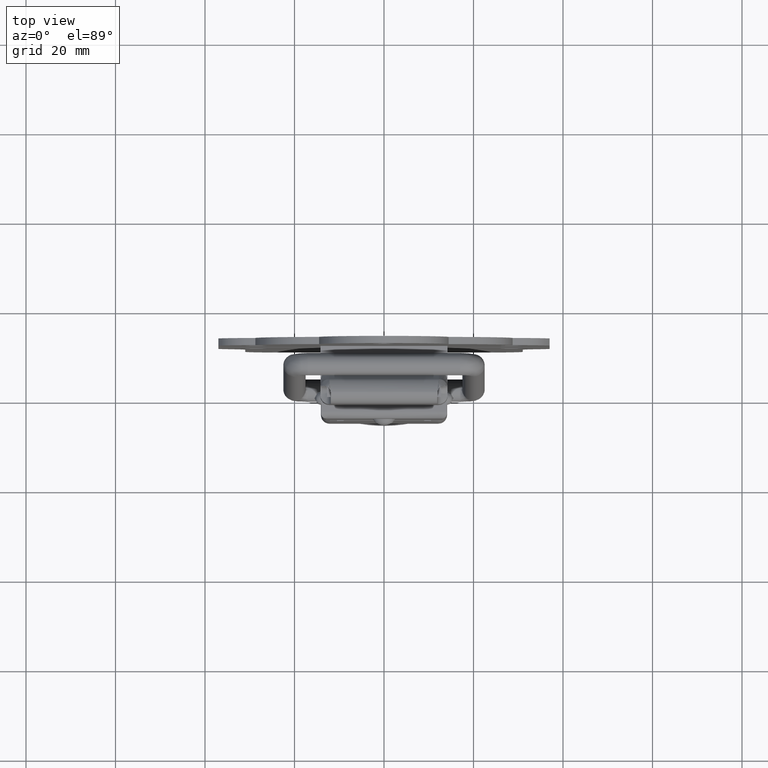
[diagram: clean part render]
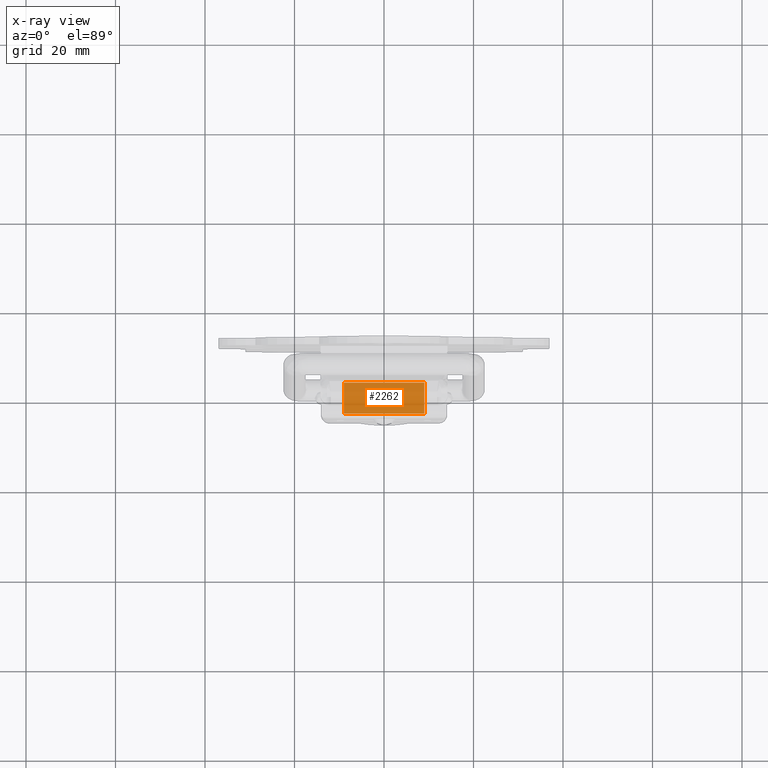
[diagram: x-ray — body ghosted, one internal face saturated and labeled with its STEP entity id]
A machine part, top view, then the same camera in x-ray: the body is ghosted and one INTERNAL B-rep face — a face not visible from any outside direction — is saturated and labeled: STEP entity #2262.
In plain terms, the highlighted face is a freeform B-spline surface patch.
Its self-contained STEP definition (entity closure, byte-faithful):
#2066=CARTESIAN_POINT('',(-8.999699999999999,3.400000000000000,4.520419885690370));
#2067=VERTEX_POINT('',#2066);
#2073=CARTESIAN_POINT('',(-8.999699999999999,-3.500000000000000,0.750000000000000));
#2074=VERTEX_POINT('',#2073);
#2075=CARTESIAN_POINT('',(-8.999699999999999,3.400000000000003,4.520419885690381));
#2076=CARTESIAN_POINT('',(-8.999699999999999,-0.728219171732910,3.876374700838773));
#2077=CARTESIAN_POINT('',(-8.999699999999999,-3.500000000000011,0.750000000000011));
#2085=(BOUNDED_CURVE()B_SPLINE_CURVE(2,(#2075,#2076,#2077),.UNSPECIFIED.,.F.,.U.)CURVE()GEOMETRIC_REPRESENTATION_ITEM()QUASI_UNIFORM_CURVE()RATIONAL_B_SPLINE_CURVE((1.0,0.940959991189904,1.0))REPRESENTATION_ITEM(''));
#2086=EDGE_CURVE('',#2067,#2074,#2085,.T.);
#2148=CARTESIAN_POINT('',(8.999699999999999,-3.500000000000000,0.750000000000000));
#2149=VERTEX_POINT('',#2148);
#2155=CARTESIAN_POINT('',(8.999699999999999,3.400000000000000,4.520419885690370));
#2156=VERTEX_POINT('',#2155);
#2157=CARTESIAN_POINT('',(8.999699999999999,3.400000000000003,4.520419885690381));
#2158=CARTESIAN_POINT('',(8.999699999999999,-0.728219171732910,3.876374700838773));
#2159=CARTESIAN_POINT('',(8.999699999999999,-3.500000000000011,0.750000000000011));
#2167=(BOUNDED_CURVE()B_SPLINE_CURVE(2,(#2157,#2158,#2159),.UNSPECIFIED.,.F.,.U.)CURVE()GEOMETRIC_REPRESENTATION_ITEM()QUASI_UNIFORM_CURVE()RATIONAL_B_SPLINE_CURVE((1.0,0.940959991189904,1.0))REPRESENTATION_ITEM(''));
#2168=EDGE_CURVE('',#2156,#2149,#2167,.T.);
#2230=CARTESIAN_POINT('',(8.999699999999999,3.400000000000000,4.520419885690370));
#2231=CARTESIAN_POINT('',(-8.999699999999999,3.400000000000000,4.520419885690370));
#2232=QUASI_UNIFORM_CURVE('',1,(#2230,#2231),.UNSPECIFIED.,.F.,.U.);
#2233=EDGE_CURVE('',#2156,#2067,#2232,.T.);
#2238=CARTESIAN_POINT('',(9.449685000000001,3.786237036238408,4.574051374517079));
#2239=CARTESIAN_POINT('',(-9.460934624999997,3.786237036238408,4.574051374517079));
#2240=CARTESIAN_POINT('',(9.449684999999999,-0.805838841232870,4.014818229489148));
#2241=CARTESIAN_POINT('',(-9.460934624999997,-0.805838841232870,4.014818229489148));
#2242=CARTESIAN_POINT('',(9.449684999999997,-3.755799967603592,0.451444557271623));
#2243=CARTESIAN_POINT('',(-9.460934624999997,-3.755799967603592,0.451444557271623));
#2251=(BOUNDED_SURFACE()B_SPLINE_SURFACE(1,2,((#2238,#2240,#2242),(#2239,#2241,#2243)),.UNSPECIFIED.,.F.,.F.,.U.)B_SPLINE_SURFACE_WITH_KNOTS((2,2),(3,3),(0.0,18.910619624999999),(0.0,8.911498109771001),.UNSPECIFIED.)GEOMETRIC_REPRESENTATION_ITEM()RATIONAL_B_SPLINE_SURFACE(((0.999989469472021,0.925035434096812,0.991463520561100),(0.999989469472021,0.925035434096812,0.991463520561100)))REPRESENTATION_ITEM('')SURFACE());
#2252=ORIENTED_EDGE('',*,*,#2086,.F.);
#2253=ORIENTED_EDGE('',*,*,#2233,.F.);
#2254=ORIENTED_EDGE('',*,*,#2168,.T.);
#2255=CARTESIAN_POINT('',(8.999699999999999,-3.500000000000000,0.750000000000000));
#2256=CARTESIAN_POINT('',(-8.999699999999999,-3.500000000000000,0.750000000000000));
#2257=QUASI_UNIFORM_CURVE('',1,(#2255,#2256),.UNSPECIFIED.,.F.,.U.);
#2258=EDGE_CURVE('',#2149,#2074,#2257,.T.);
#2259=ORIENTED_EDGE('',*,*,#2258,.T.);
#2260=EDGE_LOOP('',(#2252,#2253,#2254,#2259));
#2261=FACE_OUTER_BOUND('',#2260,.T.);
#2262=ADVANCED_FACE('',(#2261),#2251,.F.);